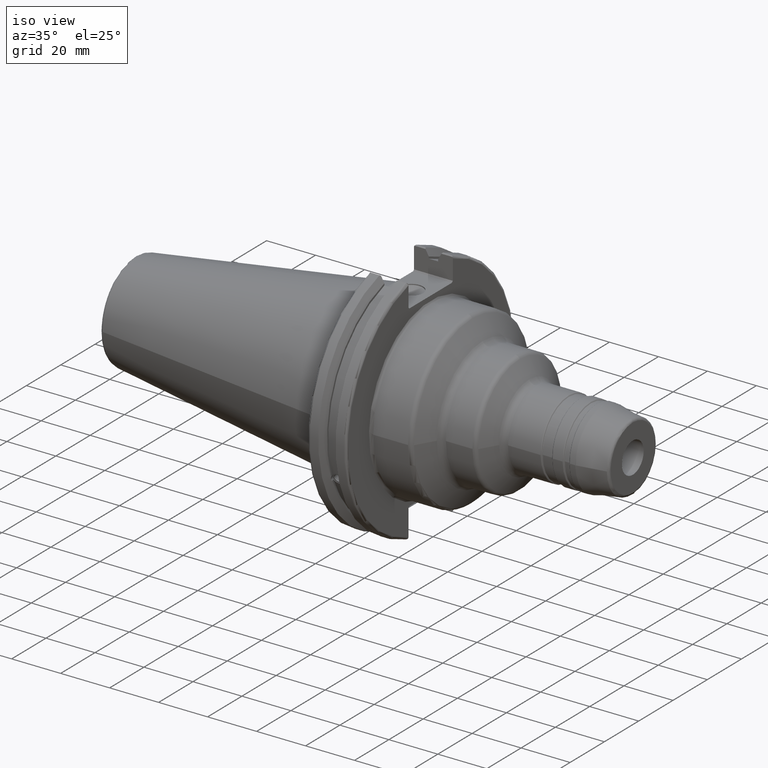
[diagram: clean part render]
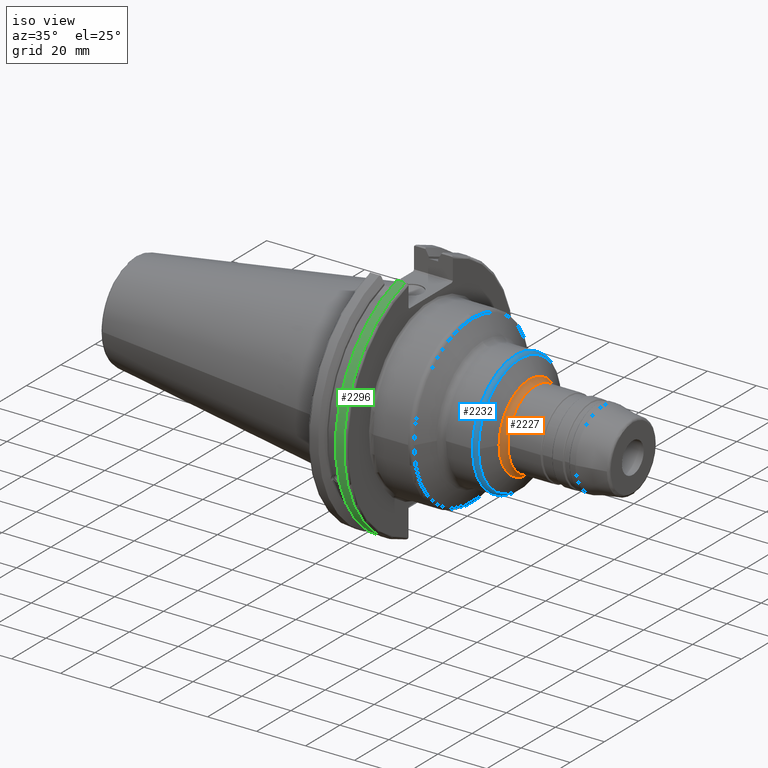
[diagram: same view with three faces highlighted in distinct colors, each labeled with its STEP entity id]
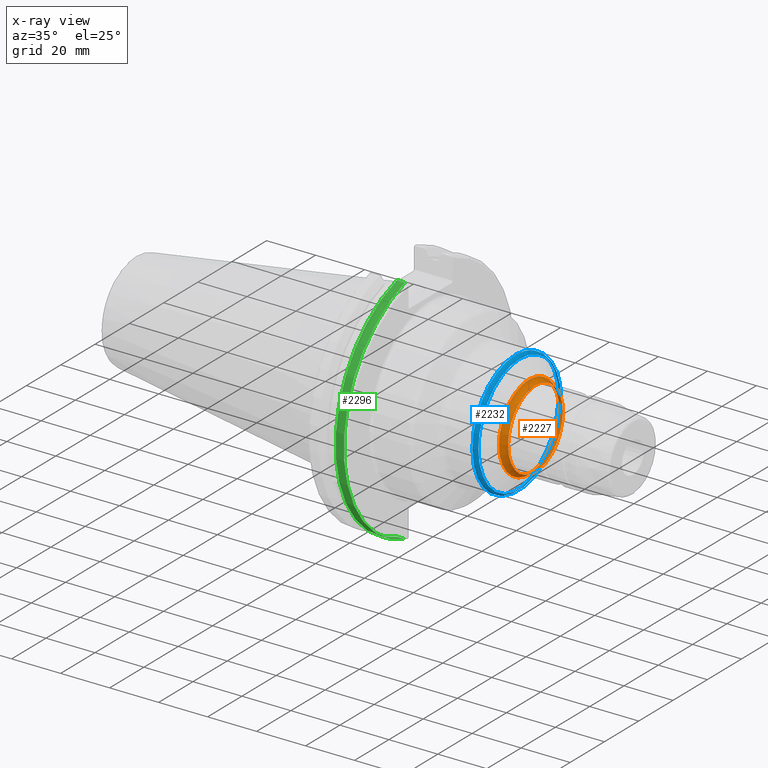
[diagram: x-ray of the same camera — body ghosted, the three highlighted faces saturated]
A machine part, iso view with three faces highlighted in distinct colors.
The next image is the same camera in x-ray (body ghosted, the three faces saturated) — at least one of them is partly hidden behind the body in this view.
Their STEP definitions:

[orange] entity #2227 — the highlighted toroidal blend (fillet) surface has major radius 19 mm and minor (blend) radius 3 mm.
#78=TOROIDAL_SURFACE('',#2431,19.,3.);
#192=FACE_OUTER_BOUND('',#306,.T.);
#306=EDGE_LOOP('',(#1614,#1615,#1616,#1617,#1618,#1619,#1620,#1621));
#696=CIRCLE('',#2428,16.);
#697=CIRCLE('',#2429,16.);
#698=CIRCLE('',#2430,16.);
#699=CIRCLE('',#2432,17.5);
#700=CIRCLE('',#2433,3.);
#701=CIRCLE('',#2434,17.5);
#702=CIRCLE('',#2435,17.5);
#889=VERTEX_POINT('',#3621);
#890=VERTEX_POINT('',#3623);
#891=VERTEX_POINT('',#3625);
#892=VERTEX_POINT('',#3629);
#893=VERTEX_POINT('',#3630);
#894=VERTEX_POINT('',#3633);
#1172=EDGE_CURVE('',#890,#889,#696,.T.);
#1173=EDGE_CURVE('',#891,#890,#697,.T.);
#1174=EDGE_CURVE('',#889,#891,#698,.T.);
#1175=EDGE_CURVE('',#892,#893,#699,.T.);
#1176=EDGE_CURVE('',#893,#891,#700,.T.);
#1177=EDGE_CURVE('',#893,#894,#701,.T.);
#1178=EDGE_CURVE('',#894,#892,#702,.T.);
#1614=ORIENTED_EDGE('',*,*,#1175,.T.);
#1615=ORIENTED_EDGE('',*,*,#1176,.T.);
#1616=ORIENTED_EDGE('',*,*,#1173,.T.);
#1617=ORIENTED_EDGE('',*,*,#1172,.T.);
#1618=ORIENTED_EDGE('',*,*,#1174,.T.);
#1619=ORIENTED_EDGE('',*,*,#1176,.F.);
#1620=ORIENTED_EDGE('',*,*,#1177,.T.);
#1621=ORIENTED_EDGE('',*,*,#1178,.T.);
#2227=ADVANCED_FACE('',(#192),#78,.F.);
#2428=AXIS2_PLACEMENT_3D('',#3624,#2846,#2847);
#2429=AXIS2_PLACEMENT_3D('',#3626,#2848,#2849);
#2430=AXIS2_PLACEMENT_3D('',#3627,#2850,#2851);
#2431=AXIS2_PLACEMENT_3D('',#3628,#2852,#2853);
#2432=AXIS2_PLACEMENT_3D('',#3631,#2854,#2855);
#2433=AXIS2_PLACEMENT_3D('',#3632,#2856,#2857);
#2434=AXIS2_PLACEMENT_3D('',#3634,#2858,#2859);
#2435=AXIS2_PLACEMENT_3D('',#3635,#2860,#2861);
#2846=DIRECTION('center_axis',(-1.,0.,0.));
#2847=DIRECTION('ref_axis',(0.,-1.,1.83697019872103E-16));
#2848=DIRECTION('center_axis',(-1.,0.,0.));
#2849=DIRECTION('ref_axis',(0.,-1.,1.83697019872103E-16));
#2850=DIRECTION('center_axis',(-1.,0.,0.));
#2851=DIRECTION('ref_axis',(0.,-1.,1.83697019872103E-16));
#2852=DIRECTION('center_axis',(1.,0.,0.));
#2853=DIRECTION('ref_axis',(0.,0.,-1.));
#2854=DIRECTION('center_axis',(1.,0.,0.));
#2855=DIRECTION('ref_axis',(0.,-1.,3.06161699786838E-17));
#2856=DIRECTION('center_axis',(0.,-1.,-1.22464679914735E-16));
#2857=DIRECTION('ref_axis',(0.,-1.22464679914735E-16,1.));
#2858=DIRECTION('center_axis',(1.,0.,0.));
#2859=DIRECTION('ref_axis',(0.,-1.,3.06161699786838E-17));
#2860=DIRECTION('center_axis',(1.,0.,0.));
#2861=DIRECTION('ref_axis',(0.,-1.,3.06161699786838E-17));
#3621=CARTESIAN_POINT('',(61.8320508075689,-16.,-1.95943487863576E-15));
#3623=CARTESIAN_POINT('',(61.8320508075689,16.,-4.89858719658941E-15));
#3624=CARTESIAN_POINT('Origin',(61.8320508075689,0.,0.));
#3625=CARTESIAN_POINT('',(61.8320508075689,-1.95943487863576E-15,16.));
#3626=CARTESIAN_POINT('Origin',(61.8320508075689,0.,0.));
#3627=CARTESIAN_POINT('Origin',(61.8320508075689,0.,0.));
#3628=CARTESIAN_POINT('Origin',(61.8320508075689,0.,0.));
#3629=CARTESIAN_POINT('',(59.2339745962156,17.5,-1.07156594925393E-15));
#3630=CARTESIAN_POINT('',(59.2339745962156,-2.14313189850787E-15,17.5));
#3631=CARTESIAN_POINT('Origin',(59.2339745962156,0.,-2.67891487313483E-15));
#3632=CARTESIAN_POINT('Origin',(61.8320508075689,-2.32682891837997E-15,
19.));
#3633=CARTESIAN_POINT('',(59.2339745962156,-17.5,-2.14313189850787E-15));
#3634=CARTESIAN_POINT('Origin',(59.2339745962156,0.,-2.67891487313483E-15));
#3635=CARTESIAN_POINT('Origin',(59.2339745962156,0.,-2.67891487313483E-15));

[blue] entity #2232 — the highlighted toroidal blend (fillet) surface has major radius 23.125 mm and minor (blend) radius 2 mm.
#80=TOROIDAL_SURFACE('',#2456,23.125,2.);
#197=FACE_OUTER_BOUND('',#311,.T.);
#311=EDGE_LOOP('',(#1654,#1655,#1656,#1657,#1658,#1659,#1660,#1661));
#703=CIRCLE('',#2437,24.125);
#704=CIRCLE('',#2438,24.125);
#705=CIRCLE('',#2439,24.125);
#713=CIRCLE('',#2449,25.125);
#714=CIRCLE('',#2450,25.125);
#715=CIRCLE('',#2451,25.125);
#719=CIRCLE('',#2457,2.);
#895=VERTEX_POINT('',#3637);
#896=VERTEX_POINT('',#3639);
#897=VERTEX_POINT('',#3641);
#904=VERTEX_POINT('',#3659);
#905=VERTEX_POINT('',#3660);
#906=VERTEX_POINT('',#3662);
#1180=EDGE_CURVE('',#896,#895,#703,.T.);
#1181=EDGE_CURVE('',#897,#896,#704,.T.);
#1182=EDGE_CURVE('',#895,#897,#705,.T.);
#1190=EDGE_CURVE('',#904,#905,#713,.T.);
#1191=EDGE_CURVE('',#906,#904,#714,.T.);
#1193=EDGE_CURVE('',#905,#906,#715,.T.);
#1198=EDGE_CURVE('',#897,#905,#719,.T.);
#1654=ORIENTED_EDGE('',*,*,#1180,.T.);
#1655=ORIENTED_EDGE('',*,*,#1182,.T.);
#1656=ORIENTED_EDGE('',*,*,#1198,.T.);
#1657=ORIENTED_EDGE('',*,*,#1193,.T.);
#1658=ORIENTED_EDGE('',*,*,#1191,.T.);
#1659=ORIENTED_EDGE('',*,*,#1190,.T.);
#1660=ORIENTED_EDGE('',*,*,#1198,.F.);
#1661=ORIENTED_EDGE('',*,*,#1181,.T.);
#2232=ADVANCED_FACE('',(#197),#80,.T.);
#2437=AXIS2_PLACEMENT_3D('',#3640,#2865,#2866);
#2438=AXIS2_PLACEMENT_3D('',#3642,#2867,#2868);
#2439=AXIS2_PLACEMENT_3D('',#3643,#2869,#2870);
#2449=AXIS2_PLACEMENT_3D('',#3661,#2889,#2890);
#2450=AXIS2_PLACEMENT_3D('',#3663,#2891,#2892);
#2451=AXIS2_PLACEMENT_3D('',#3665,#2894,#2895);
#2456=AXIS2_PLACEMENT_3D('',#3674,#2905,#2906);
#2457=AXIS2_PLACEMENT_3D('',#3675,#2907,#2908);
#2865=DIRECTION('center_axis',(-1.,0.,0.));
#2866=DIRECTION('ref_axis',(0.,-1.,3.06161699786838E-17));
#2867=DIRECTION('center_axis',(-1.,0.,0.));
#2868=DIRECTION('ref_axis',(0.,-1.,3.06161699786838E-17));
#2869=DIRECTION('center_axis',(-1.,0.,0.));
#2870=DIRECTION('ref_axis',(0.,-1.,3.06161699786838E-17));
#2889=DIRECTION('center_axis',(1.,0.,0.));
#2890=DIRECTION('ref_axis',(0.,-1.,1.83697019872103E-16));
#2891=DIRECTION('center_axis',(1.,0.,0.));
#2892=DIRECTION('ref_axis',(0.,-1.,1.83697019872103E-16));
#2894=DIRECTION('center_axis',(1.,0.,0.));
#2895=DIRECTION('ref_axis',(0.,-1.,1.83697019872103E-16));
#2905=DIRECTION('center_axis',(1.,0.,0.));
#2906=DIRECTION('ref_axis',(0.,0.,-1.));
#2907=DIRECTION('center_axis',(0.,-1.,-1.22464679914735E-16));
#2908=DIRECTION('ref_axis',(0.,-1.22464679914735E-16,1.));
#3637=CARTESIAN_POINT('',(55.4090290628343,-24.125,-2.95446040294299E-15));
#3639=CARTESIAN_POINT('',(55.4090290628343,24.125,-7.38615100735747E-15));
#3640=CARTESIAN_POINT('Origin',(55.4090290628343,0.,-3.69307550367874E-15));
#3641=CARTESIAN_POINT('',(55.4090290628343,-2.95446040294299E-15,24.125));
#3642=CARTESIAN_POINT('Origin',(55.4090290628343,0.,-3.69307550367874E-15));
#3643=CARTESIAN_POINT('Origin',(55.4090290628343,0.,-3.69307550367874E-15));
#3659=CARTESIAN_POINT('',(53.6769782552654,25.125,-1.53846254142886E-15));
#3660=CARTESIAN_POINT('',(53.6769782552654,-3.07692508285772E-15,25.125));
#3661=CARTESIAN_POINT('Origin',(53.6769782552654,0.,0.));
#3662=CARTESIAN_POINT('',(53.6769782552654,-25.125,-3.07692508285772E-15));
#3663=CARTESIAN_POINT('Origin',(53.6769782552654,0.,0.));
#3665=CARTESIAN_POINT('Origin',(53.6769782552654,0.,0.));
#3674=CARTESIAN_POINT('Origin',(53.6769782552654,0.,0.));
#3675=CARTESIAN_POINT('Origin',(53.6769782552654,-2.83199572302825E-15,
23.125));

[green] entity #2296 — the highlighted cylindrical surface (partial cylindrical patch) has radius 49.2125 mm, axis along (1, 0, 0).
#261=FACE_OUTER_BOUND('',#390,.T.);
#390=EDGE_LOOP('',(#2069,#2070,#2071,#2072));
#511=LINE('',#4539,#618);
#512=LINE('',#4541,#619);
#618=VECTOR('',#3298,10.);
#619=VECTOR('',#3301,10.);
#758=CIRCLE('',#2517,49.2125);
#795=CIRCLE('',#2580,49.2125);
#962=VERTEX_POINT('',#3963);
#963=VERTEX_POINT('',#3967);
#1046=VERTEX_POINT('',#4374);
#1047=VERTEX_POINT('',#4383);
#1265=EDGE_CURVE('',#963,#962,#758,.T.);
#1372=EDGE_CURVE('',#1046,#1047,#795,.T.);
#1422=EDGE_CURVE('',#1047,#962,#511,.T.);
#1423=EDGE_CURVE('',#963,#1046,#512,.T.);
#2069=ORIENTED_EDGE('',*,*,#1372,.F.);
#2070=ORIENTED_EDGE('',*,*,#1423,.F.);
#2071=ORIENTED_EDGE('',*,*,#1265,.T.);
#2072=ORIENTED_EDGE('',*,*,#1422,.F.);
#2198=CYLINDRICAL_SURFACE('',#2612,49.2125);
#2296=ADVANCED_FACE('',(#261),#2198,.T.);
#2517=AXIS2_PLACEMENT_3D('',#3968,#3041,#3042);
#2580=AXIS2_PLACEMENT_3D('',#4384,#3211,#3212);
#2612=AXIS2_PLACEMENT_3D('',#4540,#3299,#3300);
#3041=DIRECTION('center_axis',(1.,0.,0.));
#3042=DIRECTION('ref_axis',(0.,0.,-1.));
#3211=DIRECTION('center_axis',(1.,0.,0.));
#3212=DIRECTION('ref_axis',(0.,-1.,1.60812264967664E-16));
#3298=DIRECTION('',(-1.,0.,0.));
#3299=DIRECTION('center_axis',(1.,0.,0.));
#3300=DIRECTION('ref_axis',(0.,-1.,1.22464679914735E-16));
#3301=DIRECTION('',(1.,0.,0.));
#3963=CARTESIAN_POINT('',(14.6602090340487,-13.4317035994433,-47.3440544806494));
#3967=CARTESIAN_POINT('',(14.6602090340487,-13.4317035994433,47.3440544806494));
#3968=CARTESIAN_POINT('Origin',(14.6602090340487,0.,0.));
#4374=CARTESIAN_POINT('',(18.05,-13.4317035994433,47.3440544806494));
#4383=CARTESIAN_POINT('',(18.05,-13.4317035994433,-47.3440544806494));
#4384=CARTESIAN_POINT('Origin',(18.05,0.,0.));
#4539=CARTESIAN_POINT('',(16.8551045170244,-13.4317035994433,-47.3440544806494));
#4540=CARTESIAN_POINT('Origin',(16.8551045170244,0.,0.));
#4541=CARTESIAN_POINT('',(16.8551045170244,-13.4317035994433,47.3440544806494));